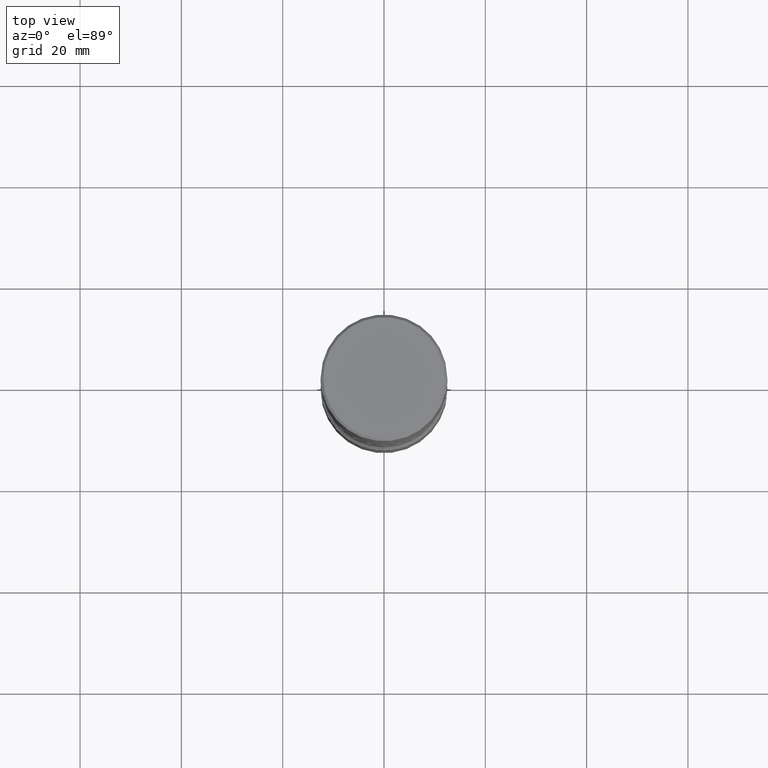
[diagram: clean part render]
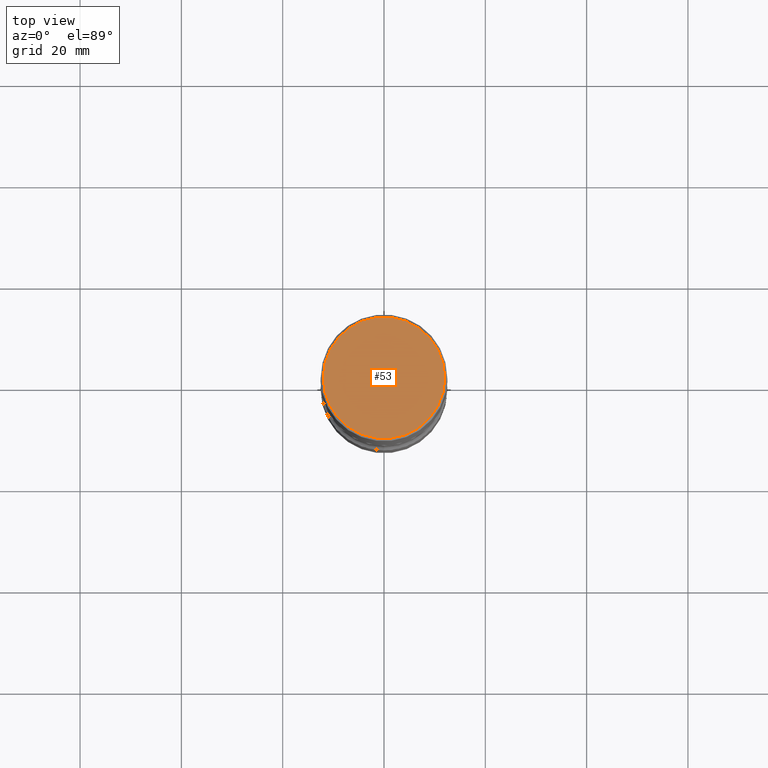
[diagram: same view with one face highlighted and labeled with its STEP entity id]
A machine part, top view. The second image highlights one B-rep face of the part: STEP entity #53.
In plain terms, the highlighted planar face has unit normal (0, -0, -1).
Its self-contained STEP definition (entity closure, byte-faithful):
#3 = DIRECTION ( 'NONE',  ( -2.445468806185136597E-29, 3.491481338843145583E-15, 1.000000000000000000 ) ) ;
#25 = DIRECTION ( 'NONE',  ( -2.445468806185136597E-29, 3.491481338843145583E-15, 1.000000000000000000 ) ) ;
#39 = AXIS2_PLACEMENT_3D ( 'NONE', #287, #3, #204 ) ;
#53 = ADVANCED_FACE ( 'NONE', ( #407 ), #414, .F. ) ;
#67 = EDGE_LOOP ( 'NONE', ( #470, #341 ) ) ;
#126 = CIRCLE ( 'NONE', #39, 0.4721500000000000696 ) ;
#204 = DIRECTION ( 'NONE',  ( 1.000000000000000000, -6.982962677686266711E-15, 4.876006802227158492E-29 ) ) ;
#210 = EDGE_CURVE ( 'NONE', #534, #482, #126, .T. ) ;
#226 = DIRECTION ( 'NONE',  ( 1.000000000000000000, -6.982962677686266711E-15, 4.876006802227158492E-29 ) ) ;
#228 = CIRCLE ( 'NONE', #325, 0.4721500000000000696 ) ;
#238 = DIRECTION ( 'NONE',  ( 2.438088387897960049E-29, -3.491481338843145188E-15, -1.000000000000000000 ) ) ;
#262 = CARTESIAN_POINT ( 'NONE',  ( -0.4721500000000000696, 3.331920641658002013E-15, 8.537024980177643606E-18 ) ) ;
#287 = CARTESIAN_POINT ( 'NONE',  ( -2.087702828670439639E-46, 2.980686340760894400E-32, 8.537024980200822558E-18 ) ) ;
#316 = EDGE_CURVE ( 'NONE', #482, #534, #228, .T. ) ;
#325 = AXIS2_PLACEMENT_3D ( 'NONE', #392, #25, #226 ) ;
#332 = CARTESIAN_POINT ( 'NONE',  ( 0.4721500000000000696, -3.342703923013975763E-15, 8.537024980224040028E-18 ) ) ;
#341 = ORIENTED_EDGE ( 'NONE', *, *, #316, .T. ) ;
#392 = CARTESIAN_POINT ( 'NONE',  ( -2.087702828670439639E-46, 2.980686340760894400E-32, 8.537024980200822558E-18 ) ) ;
#407 = FACE_OUTER_BOUND ( 'NONE', #67, .T. ) ;
#414 = PLANE ( 'NONE',  #426 ) ;
#426 = AXIS2_PLACEMENT_3D ( 'NONE', #457, #238, #554 ) ;
#457 = CARTESIAN_POINT ( 'NONE',  ( 3.297005828269570364E-15, 0.4721500000000000696, -1.644234401644690869E-15 ) ) ;
#470 = ORIENTED_EDGE ( 'NONE', *, *, #210, .T. ) ;
#482 = VERTEX_POINT ( 'NONE', #332 ) ;
#534 = VERTEX_POINT ( 'NONE', #262 ) ;
#554 = DIRECTION ( 'NONE',  ( -1.000000000000000000, 6.982962677686265922E-15, -4.876176775795935793E-29 ) ) ;